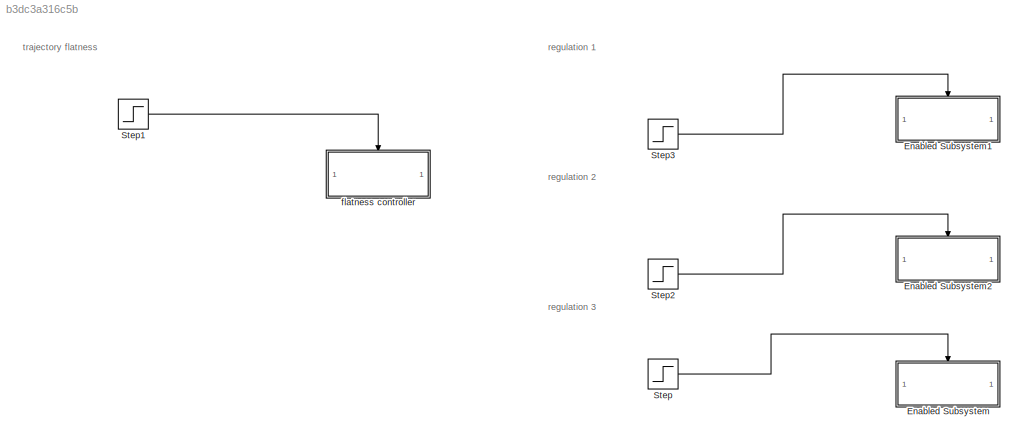
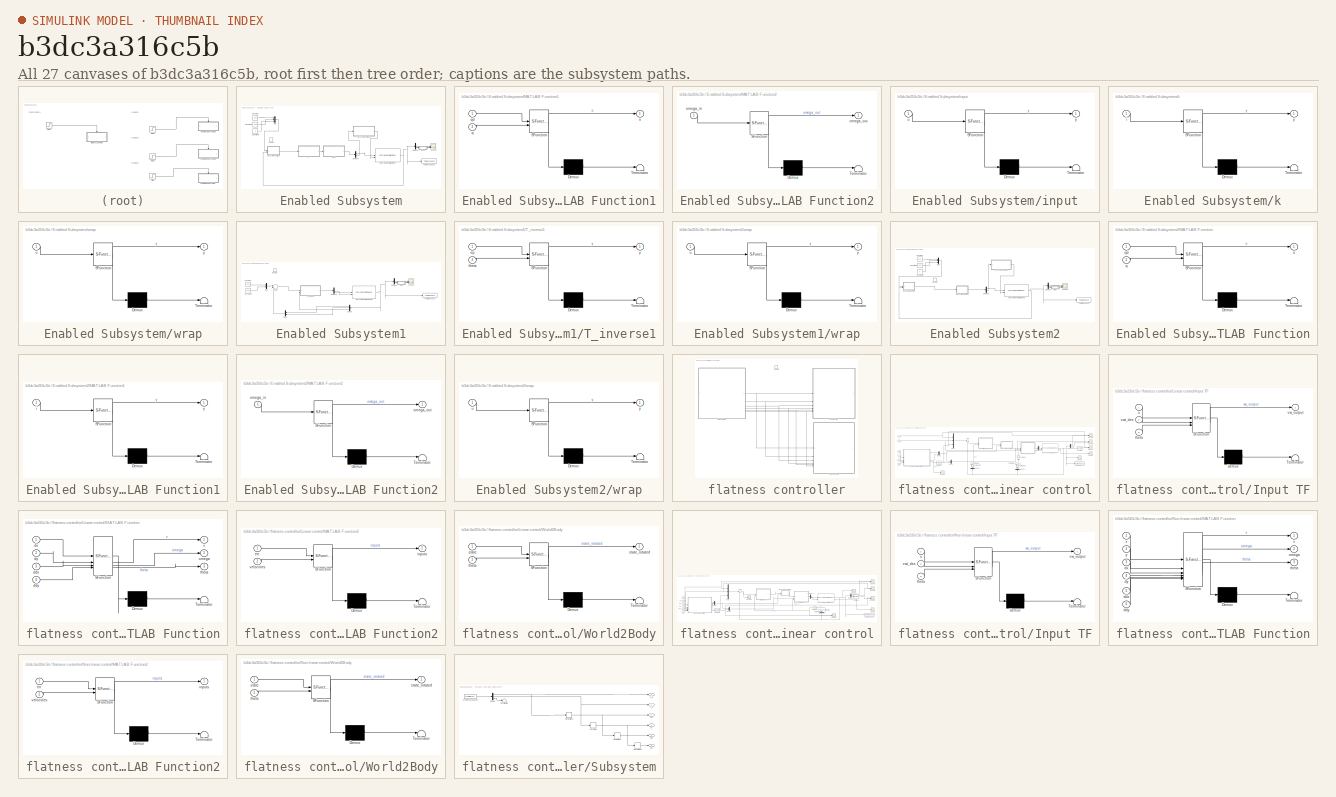
[diagram: thumbnail index - all 27 canvases of the model, root first then tree order]
MODEL slx_b3dc3a316c5b
KIND model
CONFIG AbsTol = auto
CONFIG EnableMultiTasking = off
CONFIG FixedStep = auto
CONFIG MaxStep = auto
CONFIG MinStep = auto
CONFIG RelTol = 1e-3
CONFIG SampleTimeConstraint = Unconstrained
CONFIG SolverName = FixedStepAuto
CONFIG StartTime = 0.0
CONFIG StopTime = 15
WORKSPACE source: mxarray member
WORKSPACE kp: Simulink.Parameter (value not decoded)
BLOCK [SubSystem] Enabled Subsystem
  Commented = on
  TreatAsAtomicUnit = on
BLOCK [Constant] Enabled Subsystem/Constant
  Value = 320
BLOCK [Constant] Enabled Subsystem/Constant1
  Value = 100
BLOCK [Constant] Enabled Subsystem/Constant2
  Value = 0
BLOCK [Demux] Enabled Subsystem/Demux1
  Outputs = 3
BLOCK [Demux] Enabled Subsystem/Demux4
  Outputs = 2
BLOCK [EnablePort] Enabled Subsystem/Enable
BLOCK [SubSystem] Enabled Subsystem/MATLAB Function1
  ErrorFcn = Stateflow.Translate.translate
  PermitHierarchicalResolution = ExplicitOnly
  SFBlockType = MATLAB Function
  TreatAsAtomicUnit = on
BLOCK [Demux] Enabled Subsystem/MATLAB Function1/ Demux 
  Outputs = 1
BLOCK [S-Function] Enabled Subsystem/MATLAB Function1/ SFunction 
  EnableBusSupport = off
  FunctionName = sf_sfun
  PortCounts = [2 2]
  SFcnIsStateOwnerBlock = off
  SFunctionDeploymentMode = off
  Tag = Stateflow S-Function 9
BLOCK [Terminator] Enabled Subsystem/MATLAB Function1/ Terminator 
BLOCK [Outport] Enabled Subsystem/MATLAB Function1/o
BLOCK [Inport] Enabled Subsystem/MATLAB Function1/q
  Port = 2
BLOCK [Inport] Enabled Subsystem/MATLAB Function1/qd
BLOCK [SubSystem] Enabled Subsystem/MATLAB Function2
  ErrorFcn = Stateflow.Translate.translate
  PermitHierarchicalResolution = ExplicitOnly
  SFBlockType = MATLAB Function
  TreatAsAtomicUnit = on
BLOCK [Demux] Enabled Subsystem/MATLAB Function2/ Demux 
  Outputs = 1
BLOCK [S-Function] Enabled Subsystem/MATLAB Function2/ SFunction 
  EnableBusSupport = off
  FunctionName = sf_sfun
  PortCounts = [1 2]
  SFcnIsStateOwnerBlock = off
  SFunctionDeploymentMode = off
  Tag = Stateflow S-Function 10
BLOCK [Terminator] Enabled Subsystem/MATLAB Function2/ Terminator 
BLOCK [Inport] Enabled Subsystem/MATLAB Function2/omega_in
BLOCK [Outport] Enabled Subsystem/MATLAB Function2/omega_out
BLOCK [Mux] Enabled Subsystem/Mux
  DisplayOption = bar
  Inputs = 3
BLOCK [Scope] Enabled Subsystem/Scope1
  Floating = off
  NumInputPorts = 3
  ScopeSpecificationString = Simulink.scopes.TimeScopeBlockCfg('CurrentConfiguration', extmgr.ConfigurationSet(extmgr.Configuration('Core','General UI',true),extmgr.Configuration('Core','Source UI',true),extmgr.Configuration('Sources','WiredSimulink',true,'DataLoggingVariableName','ScopeData2'),extmgr.Configuration('Visuals','Time Domain',true,'SerializedDisplays',{struct('MinYLimReal','-40.0973','MaxYLimReal','360.01081','YL...<+1469ch>
BLOCK [ToWorkspace] Enabled Subsystem/To Workspace1
  FixptAsFi = on
  MaxDataPoints = inf
  SampleTime = 0.001
  SaveFormat = Structure With Time
  VariableName = uni_state1
BLOCK [Reference] Enabled Subsystem/Unicycle Kinematic Model  REF=robotmobilelib/Unicycle Kinematic Model
  SourceBlock = robotmobilelib/Unicycle Kinematic Model
  SourceType = Unicycle Kinematic Model
BLOCK [SubSystem] Enabled Subsystem/input
  ErrorFcn = Stateflow.Translate.translate
  PermitHierarchicalResolution = ExplicitOnly
  SFBlockType = MATLAB Function
  TreatAsAtomicUnit = on
BLOCK [Demux] Enabled Subsystem/input/ Demux 
  Outputs = 1
BLOCK [S-Function] Enabled Subsystem/input/ SFunction 
  EnableBusSupport = off
  FunctionName = sf_sfun
  PortCounts = [1 2]
  SFcnIsStateOwnerBlock = off
  SFunctionDeploymentMode = off
  Tag = Stateflow S-Function 11
BLOCK [Terminator] Enabled Subsystem/input/ Terminator 
BLOCK [Inport] Enabled Subsystem/input/u
BLOCK [Outport] Enabled Subsystem/input/y
BLOCK [SubSystem] Enabled Subsystem/k
  ErrorFcn = Stateflow.Translate.translate
  PermitHierarchicalResolution = ExplicitOnly
  SFBlockType = MATLAB Function
  TreatAsAtomicUnit = on
BLOCK [Demux] Enabled Subsystem/k/ Demux 
  Outputs = 1
BLOCK [S-Function] Enabled Subsystem/k/ SFunction 
  EnableBusSupport = off
  FunctionName = sf_sfun
  PortCounts = [1 2]
  SFcnIsStateOwnerBlock = off
  SFunctionDeploymentMode = off
  Tag = Stateflow S-Function 12
BLOCK [Terminator] Enabled Subsystem/k/ Terminator 
BLOCK [Inport] Enabled Subsystem/k/i
BLOCK [Outport] Enabled Subsystem/k/y
BLOCK [SubSystem] Enabled Subsystem/wrap
  ErrorFcn = Stateflow.Translate.translate
  PermitHierarchicalResolution = ExplicitOnly
  SFBlockType = MATLAB Function
  TreatAsAtomicUnit = on
BLOCK [Demux] Enabled Subsystem/wrap/ Demux 
  Outputs = 1
BLOCK [S-Function] Enabled Subsystem/wrap/ SFunction 
  EnableBusSupport = off
  FunctionName = sf_sfun
  PortCounts = [1 2]
  SFcnIsStateOwnerBlock = off
  SFunctionDeploymentMode = off
  Tag = Stateflow S-Function 13
BLOCK [Terminator] Enabled Subsystem/wrap/ Terminator 
BLOCK [Inport] Enabled Subsystem/wrap/u
BLOCK [Outport] Enabled Subsystem/wrap/y
BLOCK [SubSystem] Enabled Subsystem1
  TreatAsAtomicUnit = on
BLOCK [Constant] Enabled Subsystem1/Constant
  Value = 320
BLOCK [Constant] Enabled Subsystem1/Constant1
  Value = 100
BLOCK [Demux] Enabled Subsystem1/Demux
  NameLocation = top
  Outputs = 3
BLOCK [Demux] Enabled Subsystem1/Demux2
  Outputs = 2
BLOCK [Demux] Enabled Subsystem1/Demux4
  Outputs = 3
BLOCK [EnablePort] Enabled Subsystem1/Enable
BLOCK [Mux] Enabled Subsystem1/Mux
  DisplayOption = bar
  Inputs = 2
BLOCK [Mux] Enabled Subsystem1/Mux1
  DisplayOption = bar
  Inputs = 2
  NameLocation = top
BLOCK [Scope] Enabled Subsystem1/Scope2
  Floating = off
  NumInputPorts = 3
  ScopeSpecificationString = Simulink.scopes.TimeScopeBlockCfg('CurrentConfiguration', extmgr.ConfigurationSet(extmgr.Configuration('Core','General UI',true),extmgr.Configuration('Core','Source UI',true),extmgr.Configuration('Sources','WiredSimulink',true,'DataLoggingVariableName','ScopeData1'),extmgr.Configuration('Visuals','Time Domain',true,'SerializedDisplays',{struct('MinYLimReal','-40.00000','MaxYLimReal','360.00000','Y...<+1475ch>
BLOCK [Sum] Enabled Subsystem1/Sum2
  Inputs = ||+-|
BLOCK [SubSystem] Enabled Subsystem1/T_inverse1
  ErrorFcn = Stateflow.Translate.translate
  PermitHierarchicalResolution = ExplicitOnly
  SFBlockType = MATLAB Function
  TreatAsAtomicUnit = on
BLOCK [Demux] Enabled Subsystem1/T_inverse1/ Demux 
  Outputs = 1
BLOCK [S-Function] Enabled Subsystem1/T_inverse1/ SFunction 
  EnableBusSupport = on
  FunctionName = sf_sfun
  PortCounts = [2 2]
  SFcnIsStateOwnerBlock = off
  SFunctionDeploymentMode = off
  Tag = Stateflow S-Function 17
BLOCK [Terminator] Enabled Subsystem1/T_inverse1/ Terminator 
BLOCK [Inport] Enabled Subsystem1/T_inverse1/ep
BLOCK [Inport] Enabled Subsystem1/T_inverse1/theta
  Port = 2
BLOCK [Outport] Enabled Subsystem1/T_inverse1/y
BLOCK [ToWorkspace] Enabled Subsystem1/To Workspace1
  FixptAsFi = on
  MaxDataPoints = inf
  SampleTime = 0.001
  SaveFormat = Structure With Time
  VariableName = uni_state1
BLOCK [Reference] Enabled Subsystem1/Unicycle Kinematic Model1  REF=robotmobilelib/Unicycle Kinematic Model
  SourceBlock = robotmobilelib/Unicycle Kinematic Model
  SourceType = Unicycle Kinematic Model
BLOCK [SubSystem] Enabled Subsystem1/wrap
  ErrorFcn = Stateflow.Translate.translate
  PermitHierarchicalResolution = ExplicitOnly
  SFBlockType = MATLAB Function
  TreatAsAtomicUnit = on
BLOCK [Demux] Enabled Subsystem1/wrap/ Demux 
  Outputs = 1
BLOCK [S-Function] Enabled Subsystem1/wrap/ SFunction 
  EnableBusSupport = on
  FunctionName = sf_sfun
  PortCounts = [1 2]
  SFcnIsStateOwnerBlock = off
  SFunctionDeploymentMode = off
  Tag = Stateflow S-Function 16
BLOCK [Terminator] Enabled Subsystem1/wrap/ Terminator 
BLOCK [Inport] Enabled Subsystem1/wrap/u
BLOCK [Outport] Enabled Subsystem1/wrap/y
BLOCK [SubSystem] Enabled Subsystem2
  Commented = on
  TreatAsAtomicUnit = on
BLOCK [Constant] Enabled Subsystem2/Constant
  Value = 320
BLOCK [Constant] Enabled Subsystem2/Constant1
  Value = 100
BLOCK [Constant] Enabled Subsystem2/Constant2
  Value = 0
BLOCK [Demux] Enabled Subsystem2/Demux4
  Outputs = 3
BLOCK [Demux] Enabled Subsystem2/Demux5
  Outputs = 2
BLOCK [EnablePort] Enabled Subsystem2/Enable
BLOCK [SubSystem] Enabled Subsystem2/MATLAB Function
  ErrorFcn = Stateflow.Translate.translate
  PermitHierarchicalResolution = ExplicitOnly
  SFBlockType = MATLAB Function
  TreatAsAtomicUnit = on
BLOCK [Demux] Enabled Subsystem2/MATLAB Function/ Demux 
  Outputs = 1
BLOCK [S-Function] Enabled Subsystem2/MATLAB Function/ SFunction 
  EnableBusSupport = off
  FunctionName = sf_sfun
  PortCounts = [2 2]
  SFcnIsStateOwnerBlock = off
  SFunctionDeploymentMode = off
  Tag = Stateflow S-Function 14
BLOCK [Terminator] Enabled Subsystem2/MATLAB Function/ Terminator 
BLOCK [Outport] Enabled Subsystem2/MATLAB Function/o
BLOCK [Inport] Enabled Subsystem2/MATLAB Function/q
  Port = 2
BLOCK [Inport] Enabled Subsystem2/MATLAB Function/qd
BLOCK [SubSystem] Enabled Subsystem2/MATLAB Function1
  ErrorFcn = Stateflow.Translate.translate
  PermitHierarchicalResolution = ExplicitOnly
  SFBlockType = MATLAB Function
  TreatAsAtomicUnit = on
BLOCK [Demux] Enabled Subsystem2/MATLAB Function1/ Demux 
  Outputs = 1
BLOCK [S-Function] Enabled Subsystem2/MATLAB Function1/ SFunction 
  EnableBusSupport = off
  FunctionName = sf_sfun
  PortCounts = [1 2]
  SFcnIsStateOwnerBlock = off
  SFunctionDeploymentMode = off
  Tag = Stateflow S-Function 15
BLOCK [Terminator] Enabled Subsystem2/MATLAB Function1/ Terminator 
BLOCK [Inport] Enabled Subsystem2/MATLAB Function1/i
BLOCK [Outport] Enabled Subsystem2/MATLAB Function1/y
BLOCK [SubSystem] Enabled Subsystem2/MATLAB Function2
  ErrorFcn = Stateflow.Translate.translate
  PermitHierarchicalResolution = ExplicitOnly
  SFBlockType = MATLAB Function
  TreatAsAtomicUnit = on
BLOCK [Demux] Enabled Subsystem2/MATLAB Function2/ Demux 
  Outputs = 1
BLOCK [S-Function] Enabled Subsystem2/MATLAB Function2/ SFunction 
  EnableBusSupport = off
  FunctionName = sf_sfun
  PortCounts = [1 2]
  SFcnIsStateOwnerBlock = off
  SFunctionDeploymentMode = off
  Tag = Stateflow S-Function 18
BLOCK [Terminator] Enabled Subsystem2/MATLAB Function2/ Terminator 
BLOCK [Inport] Enabled Subsystem2/MATLAB Function2/omega_in
BLOCK [Outport] Enabled Subsystem2/MATLAB Function2/omega_out
BLOCK [Mux] Enabled Subsystem2/Mux
  DisplayOption = bar
  Inputs = 3
BLOCK [Scope] Enabled Subsystem2/Scope2
  Floating = off
  NumInputPorts = 3
  ScopeSpecificationString = Simulink.scopes.TimeScopeBlockCfg('CurrentConfiguration', extmgr.ConfigurationSet(extmgr.Configuration('Core','General UI',true),extmgr.Configuration('Core','Source UI',true),extmgr.Configuration('Sources','WiredSimulink',true,'DataLoggingVariableName','ScopeData1'),extmgr.Configuration('Visuals','Time Domain',true,'SerializedDisplays',{struct('MinYLimReal','-40.26123','MaxYLimReal','360.02903','Y...<+1475ch>
BLOCK [ToWorkspace] Enabled Subsystem2/To Workspace1
  FixptAsFi = on
  MaxDataPoints = inf
  SampleTime = 0.001
  SaveFormat = Structure With Time
  VariableName = uni_state1
BLOCK [Reference] Enabled Subsystem2/Unicycle Kinematic Model1  REF=robotmobilelib/Unicycle Kinematic Model
  SourceBlock = robotmobilelib/Unicycle Kinematic Model
  SourceType = Unicycle Kinematic Model
BLOCK [SubSystem] Enabled Subsystem2/wrap
  ErrorFcn = Stateflow.Translate.translate
  PermitHierarchicalResolution = ExplicitOnly
  SFBlockType = MATLAB Function
  TreatAsAtomicUnit = on
BLOCK [Demux] Enabled Subsystem2/wrap/ Demux 
  Outputs = 1
BLOCK [S-Function] Enabled Subsystem2/wrap/ SFunction 
  EnableBusSupport = off
  FunctionName = sf_sfun
  PortCounts = [1 2]
  SFcnIsStateOwnerBlock = off
  SFunctionDeploymentMode = off
  Tag = Stateflow S-Function 19
BLOCK [Terminator] Enabled Subsystem2/wrap/ Terminator 
BLOCK [Inport] Enabled Subsystem2/wrap/u
BLOCK [Outport] Enabled Subsystem2/wrap/y
BLOCK [Step] Step
  Commented = on
  SampleTime = 0
  Time = 10
BLOCK [Step] Step1
  After = 0
  Before = 1
  SampleTime = 0
  Time = 10
BLOCK [Step] Step2
  Commented = on
  SampleTime = 0
  Time = 10
BLOCK [Step] Step3
  SampleTime = 0
  Time = 10
BLOCK [SubSystem] flatness controller
  TreatAsAtomicUnit = on
BLOCK [EnablePort] flatness controller/Enable
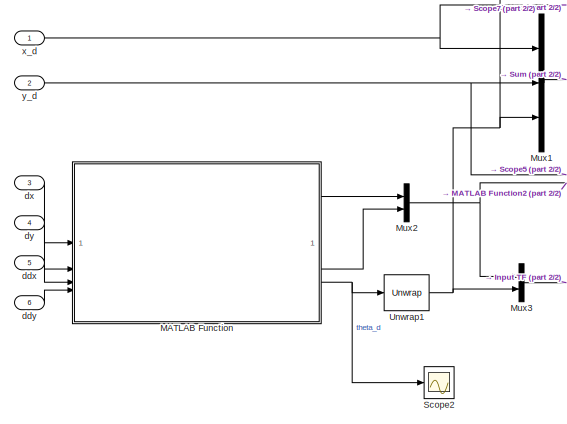
[diagram: flatness controller/Linear control - part 1/2, left side, full height]
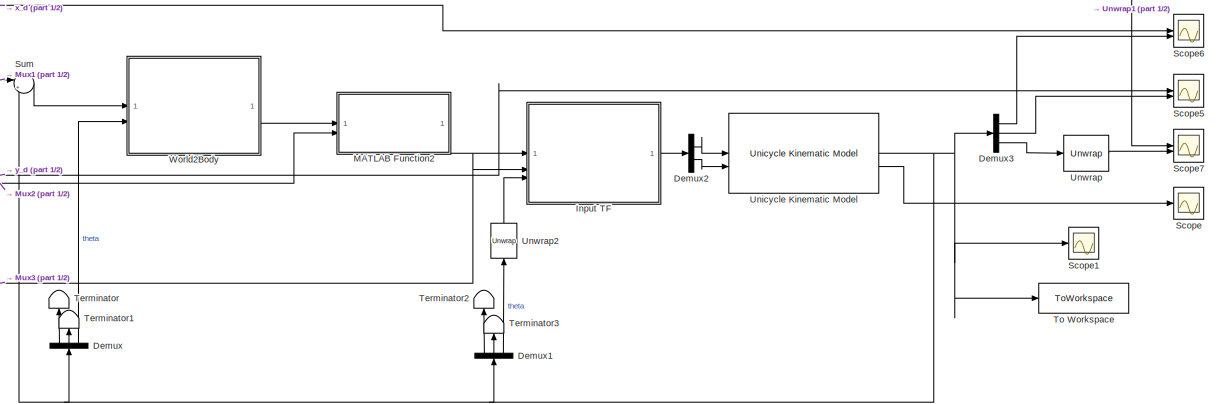
[diagram: flatness controller/Linear control - part 2/2, right side, full height]
BLOCK [SubSystem] flatness controller/Linear control
  Commented = on
BLOCK [Demux] flatness controller/Linear control/Demux
  NameLocation = right
  Outputs = 3
BLOCK [Demux] flatness controller/Linear control/Demux1
  NameLocation = right
  Outputs = 3
BLOCK [Demux] flatness controller/Linear control/Demux2
  Outputs = 2
BLOCK [Demux] flatness controller/Linear control/Demux3
  Outputs = 3
BLOCK [SubSystem] flatness controller/Linear control/Input TF
  ErrorFcn = Stateflow.Translate.translate
  PermitHierarchicalResolution = ExplicitOnly
  SFBlockType = MATLAB Function
  TreatAsAtomicUnit = on
BLOCK [Demux] flatness controller/Linear control/Input TF/ Demux 
  Outputs = 1
BLOCK [S-Function] flatness controller/Linear control/Input TF/ SFunction 
  EnableBusSupport = on
  FunctionName = sf_sfun
  PortCounts = [3 2]
  SFcnIsStateOwnerBlock = off
  SFunctionDeploymentMode = off
  Tag = Stateflow S-Function 3
BLOCK [Terminator] flatness controller/Linear control/Input TF/ Terminator 
BLOCK [Inport] flatness controller/Linear control/Input TF/theta
  Port = 3
BLOCK [Inport] flatness controller/Linear control/Input TF/u
BLOCK [Outport] flatness controller/Linear control/Input TF/vw_output
BLOCK [Inport] flatness controller/Linear control/Input TF/vwt_des
  Port = 2
BLOCK [SubSystem] flatness controller/Linear control/MATLAB Function
  ErrorFcn = Stateflow.Translate.translate
  PermitHierarchicalResolution = ExplicitOnly
  SFBlockType = MATLAB Function
  TreatAsAtomicUnit = on
BLOCK [Demux] flatness controller/Linear control/MATLAB Function/ Demux 
  Outputs = 1
BLOCK [S-Function] flatness controller/Linear control/MATLAB Function/ SFunction 
  EnableBusSupport = on
  FunctionName = sf_sfun
  PortCounts = [4 4]
  SFcnIsStateOwnerBlock = off
  SFunctionDeploymentMode = off
  Tag = Stateflow S-Function 2
BLOCK [Terminator] flatness controller/Linear control/MATLAB Function/ Terminator 
BLOCK [Inport] flatness controller/Linear control/MATLAB Function/ddx
  Port = 3
BLOCK [Inport] flatness controller/Linear control/MATLAB Function/ddy
  Port = 4
BLOCK [Inport] flatness controller/Linear control/MATLAB Function/dx
BLOCK [Inport] flatness controller/Linear control/MATLAB Function/dy
  Port = 2
BLOCK [Outport] flatness controller/Linear control/MATLAB Function/omega
  Port = 2
BLOCK [Outport] flatness controller/Linear control/MATLAB Function/theta
  Port = 3
BLOCK [Outport] flatness controller/Linear control/MATLAB Function/v
BLOCK [SubSystem] flatness controller/Linear control/MATLAB Function2
  ErrorFcn = Stateflow.Translate.translate
  PermitHierarchicalResolution = ExplicitOnly
  SFBlockType = MATLAB Function
  TreatAsAtomicUnit = on
BLOCK [Demux] flatness controller/Linear control/MATLAB Function2/ Demux 
  Outputs = 1
BLOCK [S-Function] flatness controller/Linear control/MATLAB Function2/ SFunction 
  EnableBusSupport = on
  FunctionName = sf_sfun
  PortCounts = [2 2]
  SFcnIsStateOwnerBlock = off
  SFunctionDeploymentMode = off
  Tag = Stateflow S-Function 4
BLOCK [Terminator] flatness controller/Linear control/MATLAB Function2/ Terminator 
BLOCK [Inport] flatness controller/Linear control/MATLAB Function2/err
BLOCK [Outport] flatness controller/Linear control/MATLAB Function2/inputs
BLOCK [Inport] flatness controller/Linear control/MATLAB Function2/velocities
  Port = 2
BLOCK [Mux] flatness controller/Linear control/Mux1
  DisplayOption = bar
  Inputs = 3
BLOCK [Mux] flatness controller/Linear control/Mux2
  DisplayOption = bar
  Inputs = 2
BLOCK [Mux] flatness controller/Linear control/Mux3
  DisplayOption = bar
  Inputs = 2
BLOCK [Scope] flatness controller/Linear control/Scope
  Floating = off
  NumInputPorts = 1
  ScopeSpecificationString = Simulink.scopes.TimeScopeBlockCfg('CurrentConfiguration', extmgr.ConfigurationSet(extmgr.Configuration('Core','General UI',true),extmgr.Configuration('Core','Source UI',true),extmgr.Configuration('Sources','WiredSimulink',true),extmgr.Configuration('Visuals','Time Domain',true,'SerializedDisplays',{struct('MinYLimReal','-1.76752','MaxYLimReal','11.3075','YLabelReal','','MinYLimMag','0.00000','MaxY...<+1437ch>
BLOCK [Scope] flatness controller/Linear control/Scope1
  Floating = off
  NumInputPorts = 1
  ScopeSpecificationString = Simulink.scopes.TimeScopeBlockCfg('CurrentConfiguration', extmgr.ConfigurationSet(extmgr.Configuration('Core','General UI',true),extmgr.Configuration('Core','Source UI',true),extmgr.Configuration('Sources','WiredSimulink',true,'DataLoggingVariableName','ScopeData1'),extmgr.Configuration('Visuals','Time Domain',true,'SerializedDisplays',{struct('MinYLimReal','-70.52042','MaxYLimReal','624.34393','Y...<+1555ch>
BLOCK [Scope] flatness controller/Linear control/Scope2
  Floating = off
  NumInputPorts = 1
  ScopeSpecificationString = Simulink.scopes.TimeScopeBlockCfg('CurrentConfiguration', extmgr.ConfigurationSet(extmgr.Configuration('Core','General UI',true),extmgr.Configuration('Core','Source UI',true),extmgr.Configuration('Sources','WiredSimulink',true,'DataLoggingVariableName','ScopeData1'),extmgr.Configuration('Visuals','Time Domain',true),extmgr.Configuration('Tools','Plot Navigation',true),extmgr.Configuration('Tools',...<+40ch>
BLOCK [Scope] flatness controller/Linear control/Scope5
  Floating = off
  NumInputPorts = 2
  ScopeSpecificationString = Simulink.scopes.TimeScopeBlockCfg('CurrentConfiguration', extmgr.ConfigurationSet(extmgr.Configuration('Core','General UI',true),extmgr.Configuration('Core','Source UI',true),extmgr.Configuration('Sources','WiredSimulink',true,'DataLoggingVariableName','ScopeData5'),extmgr.Configuration('Visuals','Time Domain',true,'SerializedDisplays',{struct('MinYLimReal','31.94121','MaxYLimReal','218.63298','YL...<+1465ch>
BLOCK [Scope] flatness controller/Linear control/Scope6
  Floating = off
  NumInputPorts = 2
  ScopeSpecificationString = Simulink.scopes.TimeScopeBlockCfg('CurrentConfiguration', extmgr.ConfigurationSet(extmgr.Configuration('Core','General UI',true),extmgr.Configuration('Core','Source UI',true),extmgr.Configuration('Sources','WiredSimulink',true,'DataLoggingVariableName','ScopeData6'),extmgr.Configuration('Visuals','Time Domain',true,'SerializedDisplays',{struct('MinYLimReal','-2.98578','MaxYLimReal','626.95417','YL...<+1465ch>
BLOCK [Scope] flatness controller/Linear control/Scope7
  Floating = off
  NumInputPorts = 2
  ScopeSpecificationString = Simulink.scopes.TimeScopeBlockCfg('CurrentConfiguration', extmgr.ConfigurationSet(extmgr.Configuration('Core','General UI',true),extmgr.Configuration('Core','Source UI',true),extmgr.Configuration('Sources','WiredSimulink',true,'DataLoggingVariableName','ScopeData7'),extmgr.Configuration('Visuals','Time Domain',true,'SerializedDisplays',{struct('MinYLimReal','-1.02184','MaxYLimReal','0.28724','YLab...<+1444ch>
BLOCK [Sum] flatness controller/Linear control/Sum
  Inputs = |+-
BLOCK [Terminator] flatness controller/Linear control/Terminator
  NameLocation = right
BLOCK [Terminator] flatness controller/Linear control/Terminator1
  NameLocation = right
BLOCK [Terminator] flatness controller/Linear control/Terminator2
  NameLocation = right
BLOCK [Terminator] flatness controller/Linear control/Terminator3
  NameLocation = right
BLOCK [ToWorkspace] flatness controller/Linear control/To Workspace
  FixptAsFi = on
  MaxDataPoints = inf
  SampleTime = 0.01
  SaveFormat = Structure With Time
  VariableName = uni_state
BLOCK [Reference] flatness controller/Linear control/Unicycle Kinematic Model  REF=robotmobilelib/Unicycle Kinematic Model
  SourceBlock = robotmobilelib/Unicycle Kinematic Model
  SourceType = Unicycle Kinematic Model
BLOCK [Reference] flatness controller/Linear control/Unwrap  REF=dspsigops/Unwrap
  SourceBlock = dspsigops/Unwrap
  SourceType = Unwrap
  UserDataPersistent = on
BLOCK [Reference] flatness controller/Linear control/Unwrap1  REF=dspsigops/Unwrap
  SourceBlock = dspsigops/Unwrap
  SourceType = Unwrap
  UserDataPersistent = on
BLOCK [Reference] flatness controller/Linear control/Unwrap2  REF=dspsigops/Unwrap
  NameLocation = right
  SourceBlock = dspsigops/Unwrap
  SourceType = Unwrap
  UserDataPersistent = on
BLOCK [SubSystem] flatness controller/Linear control/World2Body
  ErrorFcn = Stateflow.Translate.translate
  PermitHierarchicalResolution = ExplicitOnly
  SFBlockType = MATLAB Function
  TreatAsAtomicUnit = on
BLOCK [Demux] flatness controller/Linear control/World2Body/ Demux 
  Outputs = 1
BLOCK [S-Function] flatness controller/Linear control/World2Body/ SFunction 
  EnableBusSupport = on
  FunctionName = sf_sfun
  PortCounts = [2 2]
  SFcnIsStateOwnerBlock = off
  SFunctionDeploymentMode = off
  Tag = Stateflow S-Function 1
BLOCK [Terminator] flatness controller/Linear control/World2Body/ Terminator 
BLOCK [Inport] flatness controller/Linear control/World2Body/state
BLOCK [Outport] flatness controller/Linear control/World2Body/state_rotated
BLOCK [Inport] flatness controller/Linear control/World2Body/theta
  Port = 2
BLOCK [Inport] flatness controller/Linear control/ddx
  NameLocation = left
  Port = 5
BLOCK [Inport] flatness controller/Linear control/ddy
  NameLocation = left
  Port = 6
BLOCK [Inport] flatness controller/Linear control/dx
  NameLocation = left
  Port = 3
BLOCK [Inport] flatness controller/Linear control/dy
  NameLocation = left
  Port = 4
BLOCK [Inport] flatness controller/Linear control/x_d
  NameLocation = left
BLOCK [Inport] flatness controller/Linear control/y_d
  NameLocation = left
  Port = 2
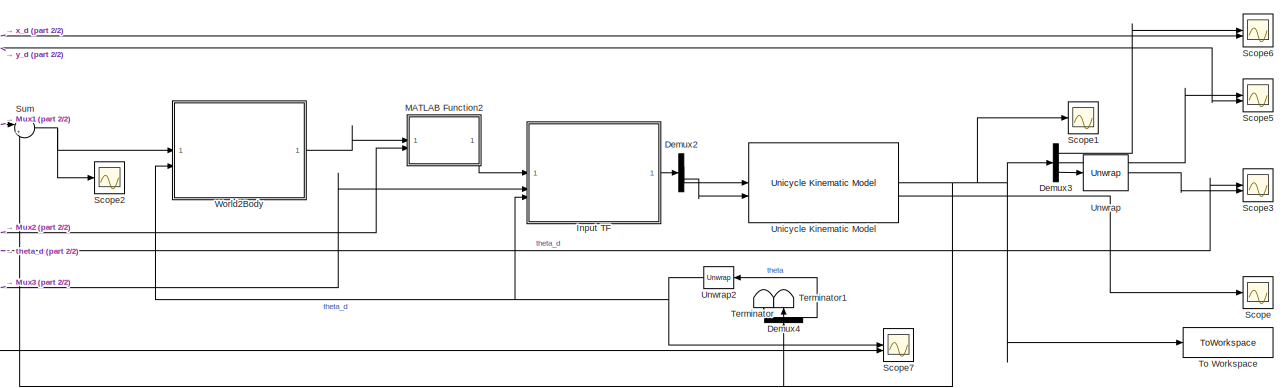
[diagram: flatness controller/Non linear control - part 1/2, center side, full height]
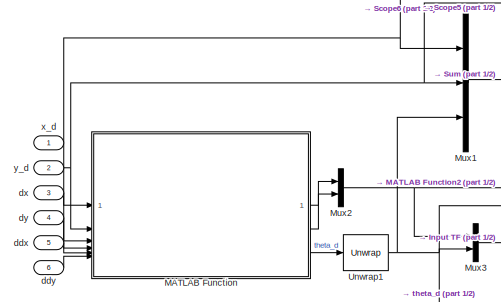
[diagram: flatness controller/Non linear control - part 2/2, middle left region]
BLOCK [SubSystem] flatness controller/Non linear control
BLOCK [Demux] flatness controller/Non linear control/Demux2
  Outputs = 2
BLOCK [Demux] flatness controller/Non linear control/Demux3
  Outputs = 3
BLOCK [Demux] flatness controller/Non linear control/Demux4
  NameLocation = right
  Outputs = 3
BLOCK [SubSystem] flatness controller/Non linear control/Input TF
  ErrorFcn = Stateflow.Translate.translate
  PermitHierarchicalResolution = ExplicitOnly
  SFBlockType = MATLAB Function
  TreatAsAtomicUnit = on
BLOCK [Demux] flatness controller/Non linear control/Input TF/ Demux 
  Outputs = 1
BLOCK [S-Function] flatness controller/Non linear control/Input TF/ SFunction 
  EnableBusSupport = on
  FunctionName = sf_sfun
  PortCounts = [3 2]
  SFcnIsStateOwnerBlock = off
  SFunctionDeploymentMode = off
  Tag = Stateflow S-Function 5
BLOCK [Terminator] flatness controller/Non linear control/Input TF/ Terminator 
BLOCK [Inport] flatness controller/Non linear control/Input TF/theta
  Port = 3
BLOCK [Inport] flatness controller/Non linear control/Input TF/u
BLOCK [Outport] flatness controller/Non linear control/Input TF/vw_output
BLOCK [Inport] flatness controller/Non linear control/Input TF/vwt_des
  Port = 2
BLOCK [SubSystem] flatness controller/Non linear control/MATLAB Function
  ErrorFcn = Stateflow.Translate.translate
  PermitHierarchicalResolution = ExplicitOnly
  SFBlockType = MATLAB Function
  TreatAsAtomicUnit = on
BLOCK [Demux] flatness controller/Non linear control/MATLAB Function/ Demux 
  Outputs = 1
BLOCK [S-Function] flatness controller/Non linear control/MATLAB Function/ SFunction 
  EnableBusSupport = on
  FunctionName = sf_sfun
  PortCounts = [6 4]
  SFcnIsStateOwnerBlock = off
  SFunctionDeploymentMode = off
  Tag = Stateflow S-Function 6
BLOCK [Terminator] flatness controller/Non linear control/MATLAB Function/ Terminator 
BLOCK [Inport] flatness controller/Non linear control/MATLAB Function/ddx
  Port = 5
BLOCK [Inport] flatness controller/Non linear control/MATLAB Function/ddy
  Port = 6
BLOCK [Inport] flatness controller/Non linear control/MATLAB Function/dx
  Port = 3
BLOCK [Inport] flatness controller/Non linear control/MATLAB Function/dy
  Port = 4
BLOCK [Outport] flatness controller/Non linear control/MATLAB Function/omega
  Port = 2
BLOCK [Outport] flatness controller/Non linear control/MATLAB Function/theta
  Port = 3
BLOCK [Outport] flatness controller/Non linear control/MATLAB Function/v
BLOCK [Inport] flatness controller/Non linear control/MATLAB Function/x
BLOCK [Inport] flatness controller/Non linear control/MATLAB Function/y
  Port = 2
BLOCK [SubSystem] flatness controller/Non linear control/MATLAB Function2
  ErrorFcn = Stateflow.Translate.translate
  PermitHierarchicalResolution = ExplicitOnly
  SFBlockType = MATLAB Function
  TreatAsAtomicUnit = on
BLOCK [Demux] flatness controller/Non linear control/MATLAB Function2/ Demux 
  Outputs = 1
BLOCK [S-Function] flatness controller/Non linear control/MATLAB Function2/ SFunction 
  EnableBusSupport = on
  FunctionName = sf_sfun
  PortCounts = [2 2]
  SFcnIsStateOwnerBlock = off
  SFunctionDeploymentMode = off
  Tag = Stateflow S-Function 7
BLOCK [Terminator] flatness controller/Non linear control/MATLAB Function2/ Terminator 
BLOCK [Inport] flatness controller/Non linear control/MATLAB Function2/err
BLOCK [Outport] flatness controller/Non linear control/MATLAB Function2/inputs
BLOCK [Inport] flatness controller/Non linear control/MATLAB Function2/velocities
  Port = 2
BLOCK [Mux] flatness controller/Non linear control/Mux1
  DisplayOption = bar
  Inputs = 3
BLOCK [Mux] flatness controller/Non linear control/Mux2
  DisplayOption = bar
  Inputs = 2
BLOCK [Mux] flatness controller/Non linear control/Mux3
  DisplayOption = bar
  Inputs = 2
BLOCK [Scope] flatness controller/Non linear control/Scope
  Floating = off
  NumInputPorts = 1
  ScopeSpecificationString = Simulink.scopes.TimeScopeBlockCfg('CurrentConfiguration', extmgr.ConfigurationSet(extmgr.Configuration('Core','General UI',true),extmgr.Configuration('Core','Source UI',true),extmgr.Configuration('Sources','WiredSimulink',true),extmgr.Configuration('Visuals','Time Domain',true,'SerializedDisplays',{struct('MinYLimReal','-1.76752','MaxYLimReal','11.3075','YLabelReal','','MinYLimMag','0.00000','MaxY...<+1437ch>
BLOCK [Scope] flatness controller/Non linear control/Scope1
  Floating = off
  NumInputPorts = 1
  ScopeSpecificationString = Simulink.scopes.TimeScopeBlockCfg('CurrentConfiguration', extmgr.ConfigurationSet(extmgr.Configuration('Core','General UI',true),extmgr.Configuration('Core','Source UI',true),extmgr.Configuration('Sources','WiredSimulink',true,'DataLoggingVariableName','ScopeData1'),extmgr.Configuration('Visuals','Time Domain',true,'SerializedDisplays',{struct('MinYLimReal','-70.54701','MaxYLimReal','624.49839','Y...<+1555ch>
BLOCK [Scope] flatness controller/Non linear control/Scope2
  Floating = off
  NumInputPorts = 1
  ScopeSpecificationString = Simulink.scopes.TimeScopeBlockCfg('CurrentConfiguration', extmgr.ConfigurationSet(extmgr.Configuration('Core','General UI',true),extmgr.Configuration('Core','Source UI',true),extmgr.Configuration('Sources','WiredSimulink',true,'DataLoggingVariableName','ScopeData1'),extmgr.Configuration('Visuals','Time Domain',true,'SerializedDisplays',{struct('MinYLimReal','-39.34211','MaxYLimReal','52.79803','YL...<+1422ch>
BLOCK [Scope] flatness controller/Non linear control/Scope3
  Floating = off
  NumInputPorts = 2
  ScopeSpecificationString = Simulink.scopes.TimeScopeBlockCfg('CurrentConfiguration', extmgr.ConfigurationSet(extmgr.Configuration('Core','General UI',true),extmgr.Configuration('Core','Source UI',true),extmgr.Configuration('Sources','WiredSimulink',true,'DataLoggingVariableName','ScopeData1'),extmgr.Configuration('Visuals','Time Domain',true,'SerializedDisplays',{struct('MinYLimReal','-1.9485','MaxYLimReal','7.19605','YLabe...<+1444ch>
BLOCK [Scope] flatness controller/Non linear control/Scope5
  Floating = off
  NumInputPorts = 2
  ScopeSpecificationString = Simulink.scopes.TimeScopeBlockCfg('CurrentConfiguration', extmgr.ConfigurationSet(extmgr.Configuration('Core','General UI',true),extmgr.Configuration('Core','Source UI',true),extmgr.Configuration('Sources','WiredSimulink',true,'DataLoggingVariableName','ScopeData5'),extmgr.Configuration('Visuals','Time Domain',true,'SerializedDisplays',{struct('MinYLimReal','31.74881','MaxYLimReal','229.8937','YLa...<+1461ch>
BLOCK [Scope] flatness controller/Non linear control/Scope6
  Floating = off
  NumInputPorts = 2
  ScopeSpecificationString = Simulink.scopes.TimeScopeBlockCfg('CurrentConfiguration', extmgr.ConfigurationSet(extmgr.Configuration('Core','General UI',true),extmgr.Configuration('Core','Source UI',true),extmgr.Configuration('Sources','WiredSimulink',true,'DataLoggingVariableName','ScopeData6'),extmgr.Configuration('Visuals','Time Domain',true,'SerializedDisplays',{struct('MinYLimReal','-1.86473','MaxYLimReal','616.86468','YL...<+1463ch>
BLOCK [Scope] flatness controller/Non linear control/Scope7
  Floating = off
  NumInputPorts = 2
  ScopeSpecificationString = Simulink.scopes.TimeScopeBlockCfg('CurrentConfiguration', extmgr.ConfigurationSet(extmgr.Configuration('Core','General UI',true),extmgr.Configuration('Core','Source UI',true),extmgr.Configuration('Sources','WiredSimulink',true,'DataLoggingVariableName','ScopeData7'),extmgr.Configuration('Visuals','Time Domain',true,'SerializedDisplays',{struct('MinYLimReal','-1.33758','MaxYLimReal','7.0598','YLabe...<+1437ch>
BLOCK [Sum] flatness controller/Non linear control/Sum
  Inputs = |+-
BLOCK [Terminator] flatness controller/Non linear control/Terminator
  NameLocation = right
BLOCK [Terminator] flatness controller/Non linear control/Terminator1
  NameLocation = right
BLOCK [ToWorkspace] flatness controller/Non linear control/To Workspace
  FixptAsFi = on
  MaxDataPoints = inf
  SampleTime = 0.01
  SaveFormat = Structure With Time
  VariableName = uni_state
BLOCK [Reference] flatness controller/Non linear control/Unicycle Kinematic Model  REF=robotmobilelib/Unicycle Kinematic Model
  SourceBlock = robotmobilelib/Unicycle Kinematic Model
  SourceType = Unicycle Kinematic Model
BLOCK [Reference] flatness controller/Non linear control/Unwrap  REF=dspsigops/Unwrap
  SourceBlock = dspsigops/Unwrap
  SourceType = Unwrap
  UserDataPersistent = on
BLOCK [Reference] flatness controller/Non linear control/Unwrap1  REF=dspsigops/Unwrap
  SourceBlock = dspsigops/Unwrap
  SourceType = Unwrap
  UserDataPersistent = on
BLOCK [Reference] flatness controller/Non linear control/Unwrap2  REF=dspsigops/Unwrap
  NameLocation = top
  SourceBlock = dspsigops/Unwrap
  SourceType = Unwrap
  UserDataPersistent = on
BLOCK [SubSystem] flatness controller/Non linear control/World2Body
  ErrorFcn = Stateflow.Translate.translate
  PermitHierarchicalResolution = ExplicitOnly
  SFBlockType = MATLAB Function
  TreatAsAtomicUnit = on
BLOCK [Demux] flatness controller/Non linear control/World2Body/ Demux 
  Outputs = 1
BLOCK [S-Function] flatness controller/Non linear control/World2Body/ SFunction 
  EnableBusSupport = on
  FunctionName = sf_sfun
  PortCounts = [2 2]
  SFcnIsStateOwnerBlock = off
  SFunctionDeploymentMode = off
  Tag = Stateflow S-Function 8
BLOCK [Terminator] flatness controller/Non linear control/World2Body/ Terminator 
BLOCK [Inport] flatness controller/Non linear control/World2Body/state
BLOCK [Outport] flatness controller/Non linear control/World2Body/state_rotated
BLOCK [Inport] flatness controller/Non linear control/World2Body/theta
  Port = 2
BLOCK [Inport] flatness controller/Non linear control/ddx
  NameLocation = left
  Port = 5
BLOCK [Inport] flatness controller/Non linear control/ddy
  NameLocation = left
  Port = 6
BLOCK [Inport] flatness controller/Non linear control/dx
  NameLocation = left
  Port = 3
BLOCK [Inport] flatness controller/Non linear control/dy
  NameLocation = left
  Port = 4
BLOCK [Inport] flatness controller/Non linear control/x_d
  NameLocation = left
BLOCK [Inport] flatness controller/Non linear control/y_d
  NameLocation = left
  Port = 2
BLOCK [SubSystem] flatness controller/Subsystem
BLOCK [Demux] flatness controller/Subsystem/Demux
  Outputs = 3
BLOCK [Derivative] flatness controller/Subsystem/Derivative
BLOCK [Derivative] flatness controller/Subsystem/Derivative1
BLOCK [Derivative] flatness controller/Subsystem/Derivative2
BLOCK [Derivative] flatness controller/Subsystem/Derivative3
BLOCK [FromWorkspace] flatness controller/Subsystem/From Workspace1
  NameLocation = right
  VariableName = ref_data
BLOCK [Terminator] flatness controller/Subsystem/Terminator
BLOCK [Outport] flatness controller/Subsystem/ddx
  Port = 5
BLOCK [Outport] flatness controller/Subsystem/ddy
  Port = 6
BLOCK [Outport] flatness controller/Subsystem/dx
  Port = 3
BLOCK [Outport] flatness controller/Subsystem/dy
  Port = 4
BLOCK [Outport] flatness controller/Subsystem/x_d
BLOCK [Outport] flatness controller/Subsystem/y_d
  Port = 2
ANNOTATION (root): regulation 1
ANNOTATION (root): regulation 2
ANNOTATION (root): regulation 3
ANNOTATION (root): trajectory flatness
LINE Enabled Subsystem/Constant1:1 -> Enabled Subsystem/Mux:2
LINE Enabled Subsystem/Constant2:1 -> Enabled Subsystem/Mux:3
LINE Enabled Subsystem/Constant:1 -> Enabled Subsystem/Mux:1
LINE Enabled Subsystem/Demux1:1 -> Enabled Subsystem/Scope1:1
LINE Enabled Subsystem/Demux1:2 -> Enabled Subsystem/Scope1:2
LINE Enabled Subsystem/Demux1:3 -> Enabled Subsystem/wrap:1
LINE Enabled Subsystem/Demux4:1 -> Enabled Subsystem/Unicycle Kinematic Model:1
LINE Enabled Subsystem/Demux4:2 -> Enabled Subsystem/MATLAB Function2:1
LINE Enabled Subsystem/MATLAB Function1:1 -> Enabled Subsystem/k:1
LINE Enabled Subsystem/MATLAB Function2:1 -> Enabled Subsystem/Unicycle Kinematic Model:2
LINE Enabled Subsystem/Mux:1 -> Enabled Subsystem/MATLAB Function1:1
NET Enabled Subsystem/Unicycle Kinematic Model:1 -> Enabled Subsystem/Demux1:1, Enabled Subsystem/MATLAB Function1:2, Enabled Subsystem/To Workspace1:1
LINE Enabled Subsystem/input:1 -> Enabled Subsystem/Demux4:1
LINE Enabled Subsystem/k:1 -> Enabled Subsystem/input:1
LINE Enabled Subsystem/wrap:1 -> Enabled Subsystem/Scope1:3
LINE Enabled Subsystem1/Constant1:1 -> Enabled Subsystem1/Mux:2
LINE Enabled Subsystem1/Constant:1 -> Enabled Subsystem1/Mux:1
LINE Enabled Subsystem1/Demux2:1 -> Enabled Subsystem1/Unicycle Kinematic Model1:1
LINE Enabled Subsystem1/Demux2:2 -> Enabled Subsystem1/Unicycle Kinematic Model1:2
LINE Enabled Subsystem1/Demux4:1 -> Enabled Subsystem1/Scope2:1
LINE Enabled Subsystem1/Demux4:2 -> Enabled Subsystem1/Scope2:2
LINE Enabled Subsystem1/Demux4:3 -> Enabled Subsystem1/wrap:1
LINE Enabled Subsystem1/Demux:1 -> Enabled Subsystem1/Mux1:1
LINE Enabled Subsystem1/Demux:2 -> Enabled Subsystem1/Mux1:2
LINE Enabled Subsystem1/Demux:3 -> Enabled Subsystem1/T_inverse1:2
LINE Enabled Subsystem1/Mux1:1 -> Enabled Subsystem1/Sum2:2
LINE Enabled Subsystem1/Mux:1 -> Enabled Subsystem1/Sum2:1
LINE Enabled Subsystem1/Sum2:1 -> Enabled Subsystem1/T_inverse1:1
LINE Enabled Subsystem1/T_inverse1:1 -> Enabled Subsystem1/Demux2:1
NET Enabled Subsystem1/Unicycle Kinematic Model1:1 -> Enabled Subsystem1/Demux4:1, Enabled Subsystem1/Demux:1, Enabled Subsystem1/To Workspace1:1
LINE Enabled Subsystem1/wrap:1 -> Enabled Subsystem1/Scope2:3
LINE Enabled Subsystem2/Constant1:1 -> Enabled Subsystem2/Mux:2
LINE Enabled Subsystem2/Constant2:1 -> Enabled Subsystem2/Mux:3
LINE Enabled Subsystem2/Constant:1 -> Enabled Subsystem2/Mux:1
LINE Enabled Subsystem2/Demux4:1 -> Enabled Subsystem2/Scope2:1
LINE Enabled Subsystem2/Demux4:2 -> Enabled Subsystem2/Scope2:2
LINE Enabled Subsystem2/Demux4:3 -> Enabled Subsystem2/wrap:1
LINE Enabled Subsystem2/Demux5:1 -> Enabled Subsystem2/Unicycle Kinematic Model1:1
LINE Enabled Subsystem2/Demux5:2 -> Enabled Subsystem2/MATLAB Function2:1
LINE Enabled Subsystem2/MATLAB Function1:1 -> Enabled Subsystem2/Demux5:1
LINE Enabled Subsystem2/MATLAB Function2:1 -> Enabled Subsystem2/Unicycle Kinematic Model1:2
LINE Enabled Subsystem2/MATLAB Function:1 -> Enabled Subsystem2/MATLAB Function1:1
LINE Enabled Subsystem2/Mux:1 -> Enabled Subsystem2/MATLAB Function:1
NET Enabled Subsystem2/Unicycle Kinematic Model1:1 -> Enabled Subsystem2/Demux4:1, Enabled Subsystem2/MATLAB Function:2, Enabled Subsystem2/To Workspace1:1
LINE Enabled Subsystem2/wrap:1 -> Enabled Subsystem2/Scope2:3
LINE Step1:1 -> flatness controller:enable
LINE Step2:1 -> Enabled Subsystem2:enable
LINE Step3:1 -> Enabled Subsystem1:enable
LINE Step:1 -> Enabled Subsystem:enable
LINE flatness controller/Linear control/Demux1:1 -> flatness controller/Linear control/Terminator2:1
LINE flatness controller/Linear control/Demux1:2 -> flatness controller/Linear control/Terminator3:1
LINE flatness controller/Linear control/Demux1:3 -> flatness controller/Linear control/Unwrap2:1
LINE flatness controller/Linear control/Demux2:1 -> flatness controller/Linear control/Unicycle Kinematic Model:1
LINE flatness controller/Linear control/Demux2:2 -> flatness controller/Linear control/Unicycle Kinematic Model:2
LINE flatness controller/Linear control/Demux3:1 -> flatness controller/Linear control/Scope6:2
LINE flatness controller/Linear control/Demux3:2 -> flatness controller/Linear control/Scope5:2
LINE flatness controller/Linear control/Demux3:3 -> flatness controller/Linear control/Unwrap:1
LINE flatness controller/Linear control/Demux:1 -> flatness controller/Linear control/Terminator:1
LINE flatness controller/Linear control/Demux:2 -> flatness controller/Linear control/Terminator1:1
LINE flatness controller/Linear control/Demux:3 -> flatness controller/Linear control/World2Body:2
LINE flatness controller/Linear control/Input TF:1 -> flatness controller/Linear control/Demux2:1
LINE flatness controller/Linear control/MATLAB Function2:1 -> flatness controller/Linear control/Input TF:1
LINE flatness controller/Linear control/MATLAB Function:1 -> flatness controller/Linear control/Mux2:1
LINE flatness controller/Linear control/MATLAB Function:2 -> flatness controller/Linear control/Mux2:2
NET flatness controller/Linear control/MATLAB Function:3 -> flatness controller/Linear control/Scope2:1, flatness controller/Linear control/Unwrap1:1
LINE flatness controller/Linear control/Mux1:1 -> flatness controller/Linear control/Sum:1
NET flatness controller/Linear control/Mux2:1 -> flatness controller/Linear control/MATLAB Function2:2, flatness controller/Linear control/Mux3:1
LINE flatness controller/Linear control/Mux3:1 -> flatness controller/Linear control/Input TF:2
LINE flatness controller/Linear control/Sum:1 -> flatness controller/Linear control/World2Body:1
NET flatness controller/Linear control/Unicycle Kinematic Model:1 -> flatness controller/Linear control/Demux1:1, flatness controller/Linear control/Demux3:1, flatness controller/Linear control/Demux:1, flatness controller/Linear control/Scope1:1, flatness controller/Linear control/Sum:2, flatness controller/Linear control/To Workspace:1
LINE flatness controller/Linear control/Unicycle Kinematic Model:2 -> flatness controller/Linear control/Scope:1
NET flatness controller/Linear control/Unwrap1:1 -> flatness controller/Linear control/Mux1:3, flatness controller/Linear control/Mux3:2, flatness controller/Linear control/Scope7:1
LINE flatness controller/Linear control/Unwrap2:1 -> flatness controller/Linear control/Input TF:3
LINE flatness controller/Linear control/Unwrap:1 -> flatness controller/Linear control/Scope7:2
LINE flatness controller/Linear control/World2Body:1 -> flatness controller/Linear control/MATLAB Function2:1
LINE flatness controller/Linear control/ddx:1 -> flatness controller/Linear control/MATLAB Function:3
LINE flatness controller/Linear control/ddy:1 -> flatness controller/Linear control/MATLAB Function:4
LINE flatness controller/Linear control/dx:1 -> flatness controller/Linear control/MATLAB Function:1
LINE flatness controller/Linear control/dy:1 -> flatness controller/Linear control/MATLAB Function:2
NET flatness controller/Linear control/x_d:1 -> flatness controller/Linear control/Mux1:1, flatness controller/Linear control/Scope6:1
NET flatness controller/Linear control/y_d:1 -> flatness controller/Linear control/Mux1:2, flatness controller/Linear control/Scope5:1
LINE flatness controller/Non linear control/Demux2:1 -> flatness controller/Non linear control/Unicycle Kinematic Model:1
LINE flatness controller/Non linear control/Demux2:2 -> flatness controller/Non linear control/Unicycle Kinematic Model:2
LINE flatness controller/Non linear control/Demux3:1 -> flatness controller/Non linear control/Scope6:1
LINE flatness controller/Non linear control/Demux3:2 -> flatness controller/Non linear control/Scope5:1
LINE flatness controller/Non linear control/Demux3:3 -> flatness controller/Non linear control/Unwrap:1
LINE flatness controller/Non linear control/Demux4:1 -> flatness controller/Non linear control/Terminator:1
LINE flatness controller/Non linear control/Demux4:2 -> flatness controller/Non linear control/Terminator1:1
LINE flatness controller/Non linear control/Demux4:3 -> flatness controller/Non linear control/Unwrap2:1
LINE flatness controller/Non linear control/Input TF:1 -> flatness controller/Non linear control/Demux2:1
LINE flatness controller/Non linear control/MATLAB Function2:1 -> flatness controller/Non linear control/Input TF:1
LINE flatness controller/Non linear control/MATLAB Function:1 -> flatness controller/Non linear control/Mux2:1
LINE flatness controller/Non linear control/MATLAB Function:2 -> flatness controller/Non linear control/Mux2:2
LINE flatness controller/Non linear control/MATLAB Function:3 -> flatness controller/Non linear control/Unwrap1:1
LINE flatness controller/Non linear control/Mux1:1 -> flatness controller/Non linear control/Sum:1
NET flatness controller/Non linear control/Mux2:1 -> flatness controller/Non linear control/MATLAB Function2:2, flatness controller/Non linear control/Mux3:1
LINE flatness controller/Non linear control/Mux3:1 -> flatness controller/Non linear control/Input TF:2
NET flatness controller/Non linear control/Sum:1 -> flatness controller/Non linear control/Scope2:1, flatness controller/Non linear control/World2Body:1
NET flatness controller/Non linear control/Unicycle Kinematic Model:1 -> flatness controller/Non linear control/Demux3:1, flatness controller/Non linear control/Demux4:1, flatness controller/Non linear control/Scope1:1, flatness controller/Non linear control/Sum:2, flatness controller/Non linear control/To Workspace:1
LINE flatness controller/Non linear control/Unicycle Kinematic Model:2 -> flatness controller/Non linear control/Scope:1
NET flatness controller/Non linear control/Unwrap1:1 -> flatness controller/Non linear control/Mux1:3, flatness controller/Non linear control/Mux3:2, flatness controller/Non linear control/Scope3:1, flatness controller/Non linear control/Scope7:2
NET flatness controller/Non linear control/Unwrap2:1 -> flatness controller/Non linear control/Input TF:3, flatness controller/Non linear control/Scope7:1, flatness controller/Non linear control/World2Body:2
LINE flatness controller/Non linear control/Unwrap:1 -> flatness controller/Non linear control/Scope3:2
LINE flatness controller/Non linear control/World2Body:1 -> flatness controller/Non linear control/MATLAB Function2:1
LINE flatness controller/Non linear control/ddx:1 -> flatness controller/Non linear control/MATLAB Function:5
LINE flatness controller/Non linear control/ddy:1 -> flatness controller/Non linear control/MATLAB Function:6
LINE flatness controller/Non linear control/dx:1 -> flatness controller/Non linear control/MATLAB Function:3
LINE flatness controller/Non linear control/dy:1 -> flatness controller/Non linear control/MATLAB Function:4
NET flatness controller/Non linear control/x_d:1 -> flatness controller/Non linear control/MATLAB Function:1, flatness controller/Non linear control/Mux1:1, flatness controller/Non linear control/Scope6:2
NET flatness controller/Non linear control/y_d:1 -> flatness controller/Non linear control/MATLAB Function:2, flatness controller/Non linear control/Mux1:2, flatness controller/Non linear control/Scope5:2
NET flatness controller/Subsystem/Demux:1 -> flatness controller/Subsystem/Derivative1:1, flatness controller/Subsystem/x_d:1
NET flatness controller/Subsystem/Demux:2 -> flatness controller/Subsystem/Derivative:1, flatness controller/Subsystem/y_d:1
LINE flatness controller/Subsystem/Demux:3 -> flatness controller/Subsystem/Terminator:1
NET flatness controller/Subsystem/Derivative1:1 -> flatness controller/Subsystem/Derivative2:1, flatness controller/Subsystem/dx:1
LINE flatness controller/Subsystem/Derivative2:1 -> flatness controller/Subsystem/ddx:1
LINE flatness controller/Subsystem/Derivative3:1 -> flatness controller/Subsystem/ddy:1
NET flatness controller/Subsystem/Derivative:1 -> flatness controller/Subsystem/Derivative3:1, flatness controller/Subsystem/dy:1
LINE flatness controller/Subsystem/From Workspace1:1 -> flatness controller/Subsystem/Demux:1
NET flatness controller/Subsystem:1 -> flatness controller/Linear control:1, flatness controller/Non linear control:1
NET flatness controller/Subsystem:2 -> flatness controller/Linear control:2, flatness controller/Non linear control:2
NET flatness controller/Subsystem:3 -> flatness controller/Linear control:3, flatness controller/Non linear control:3
NET flatness controller/Subsystem:4 -> flatness controller/Linear control:4, flatness controller/Non linear control:4
NET flatness controller/Subsystem:5 -> flatness controller/Linear control:5, flatness controller/Non linear control:5
NET flatness controller/Subsystem:6 -> flatness controller/Linear control:6, flatness controller/Non linear control:6
note: NET lines group one-source signal fan-out (src -> all destinations, sorted); 1:1 wires keep LINE
CHART Enabled
Subsystem/MATLAB Function2 states=1 transitions=1
  STATE_LABEL 'eML_blk_kernel()'
  STATE_LABEL 'SCRIPT:\nfunction omega_out = check_omega(omega_in)\n    % Check if omega (angular velocity) is finite\n    if ~isfinite(omega_in)\n        omega_out = 0;  % Set omega to a default value, e.g., 0 if it is NaN or Inf\n    else\n        omega_out = omega_in;  % Otherwise, pass the input value\n    end\nend'
CHART Enabled
Subsystem/input states=1 transitions=1
  STATE_LABEL 'eML_blk_kernel()'
  STATE_LABEL 'SCRIPT:\nfunction y = fcn(u)\nv=u(2)*u(1);\nw=u(3);\ny = [v;w];\n'
CHART Enabled
Subsystem/k states=1 transitions=1
  STATE_LABEL 'eML_blk_kernel()'
  STATE_LABEL 'SCRIPT:\nfunction y = fcn(i)\nk1=20;\nk2=100;\nk3=20;\nrho=i(1);\ngamma=i(2);\ndelta=i(3);\nu=k1*cos(gamma);\nw=k2*gamma+(k1* ((sin(gamma)*cos(gamma))/gamma) * (gamma+k3*delta));\ny = [rho;u;w];\n'
CHART Enabled
Subsystem/wrap states=1 transitions=1
  STATE_LABEL 'eML_blk_kernel()'
  STATE_LABEL 'SCRIPT:\nfunction y = fcn(u)\n\ny =mod(u+pi,2*pi)-pi;\n'
CHART Enabled
Subsystem2/MATLAB Function states=1 transitions=1
  STATE_LABEL 'eML_blk_kernel()'
  STATE_LABEL 'SCRIPT:\nfunction o = fcn(qd,q)\nxi=q(1);\nyi=q(2);\nthetai=q(3);\nx=-(qd(1)-xi);\ny=-(qd(2)-yi);\ntheta=-(qd(3)-thetai);\nrho=sqrt(x^2+y^2);\ngamma=atan2(y,x)+pi-theta;\ndelta=gamma+theta;\ndelta=mod(delta+pi,2*pi)-pi;\ngamma=mod(gamma+pi,2*pi)-pi;\no = [rho;gamma;delta];\n'
CHART Enabled
Subsystem2/MATLAB Function1 states=1 transitions=1
  STATE_LABEL 'eML_blk_kernel()'
  STATE_LABEL 'SCRIPT:\nfunction y = fcn(i)\nk1=20;\nk2=30;\nk3=4;\nrho=i(1);\ngamma=i(2);\ndelta=i(3);\nv=k1*rho*cos(gamma);\nw=k2*gamma+(k1* ((sin(gamma)*cos(gamma))/gamma) * (gamma+k3*delta));\ny = [v;w];\n'
CHART Enabled
Subsystem1/wrap states=1 transitions=1
  STATE_LABEL 'eML_blk_kernel()'
  STATE_LABEL 'SCRIPT:\nfunction y = fcn(u)\n\ny =mod(u+pi,2*pi)-pi;\n'
CHART Enabled
Subsystem1/T_inverse1 states=1 transitions=1
  STATE_LABEL 'eML_blk_kernel()'
  STATE_LABEL 'SCRIPT:\nfunction y = fcn(ep,theta)\ntheta=mod(theta+pi,2*pi)-pi;\nkv=40;\nkw=50;\nv=kv*(ep(1)*cos(theta)+ep(2)*sin(theta));\nw=kw*(atan2(-ep(2),-ep(1))+pi-theta);\ny = [v;w];\n'
CHART Enabled
Subsystem2/MATLAB Function2 states=1 transitions=1
  STATE_LABEL 'eML_blk_kernel()'
  STATE_LABEL 'SCRIPT:\nfunction omega_out = check_omega(omega_in)\n    % Check if omega (angular velocity) is finite\n    if ~isfinite(omega_in)\n        omega_out = 0;  % Set omega to a default value, e.g., 0 if it is NaN or Inf\n    else\n        omega_out = omega_in;  % Otherwise, pass the input value\n    end\nend'
CHART flatness controller/Linear control/World2Body states=1 transitions=1
  STATE_LABEL 'eML_blk_kernel()'
  STATE_LABEL 'SCRIPT:\nfunction state_rotated = rotation_matrix(state, theta)\n% ROTATION_MATRIX Rotates the position [x; y] by an input angle theta.\n%\n% Inputs:\n%   state - 3x1 vector representing [x; y; theta_state]\n%   theta - Rotation angle in radians (scalar)\n%\n% Outputs:\n%   state_rotated - 3x1 vector representing the rotated state [x_rot; y_rot; theta_state]\n\n    % Extract x, y, and theta_state from the in...<+399ch>'
CHART Enabled
Subsystem2/wrap states=1 transitions=1
  STATE_LABEL 'eML_blk_kernel()'
  STATE_LABEL 'SCRIPT:\nfunction y = fcn(u)\n\ny =mod(u+pi,2*pi)-pi;\n'
CHART flatness controller/Linear control/MATLAB Function states=1 transitions=1
  STATE_LABEL 'eML_blk_kernel()'
  STATE_LABEL 'SCRIPT:\nfunction [v, omega, theta] = unicycle_flatness_num(dx, dy, ddx, ddy)\n    % Compute linear velocity safely\n    velocity_magnitude = sqrt(dx^2 + dy^2);\n    if velocity_magnitude < 1e-6\n        v = 0;\n    else\n        v = velocity_magnitude;\n    end\n\n    % Compute heading angle\n    theta = atan2(dy, dx);\n\n    % Compute angular velocity safely\n    denominator = dx^2 + dy^2;\n    if denominator ...<+101ch>'
CHART flatness controller/Linear control/Input TF states=1 transitions=1
  STATE_LABEL 'eML_blk_kernel()'
  STATE_LABEL 'SCRIPT:\nfunction vw_output = input_transformation(u, vwt_des, theta)\n% INPUT_TRANSFORMATION Computes the transformed velocities v and w.\n%\n% Inputs:\n%   u        - 2x1 vector [u1; u2]\n%   vwt_des  - 3x1 vector [v_des; w_des; theta_des]\n%   theta    - Scalar rotation angle in radians\n%\n% Outputs:\n%   vw_output - 2x1 vector [v; w] representing the transformed velocities\n\n    % Extract inputs\n    u1 ...<+275ch>'
CHART flatness controller/Linear control/MATLAB Function2 states=1 transitions=1
  STATE_LABEL 'eML_blk_kernel()'
  STATE_LABEL 'SCRIPT:\nfunction inputs = fcn(err , velocities)\n    d = 2 / sqrt(2);\n    a = 30;\n    vd = velocities(1);\n    wd = velocities(2);\n    \n    % Safeguard for small vd\n    vd_safe = sign(vd) * max(abs(vd), 1e-4);\n    \n    % Gains\n    k1 = 2 * d * a;\n    k2 = (a^2 - wd^2) / vd_safe;\n    k3 = k1;\n    \n    % Clamp k2 to avoid large values\n    max_k2 = 10;\n    k2 = max(min(k2, max_k2), -max_k2);\n    \n    %...<+221ch>'
CHART flatness controller/Non linear control/Input TF states=1 transitions=1
  STATE_LABEL 'eML_blk_kernel()'
  STATE_LABEL 'SCRIPT:\nfunction vw_output = input_transformation(u, vwt_des, theta)\n% INPUT_TRANSFORMATION Computes the transformed velocities v and w.\n%\n% Inputs:\n%   u        - 2x1 vector [u1; u2]\n%   vwt_des  - 3x1 vector [v_des; w_des; theta_des]\n%   theta    - Scalar rotation angle in radians\n%\n% Outputs:\n%   vw_output - 2x1 vector [v; w] representing the transformed velocities\n\n    % Extract inputs\n    u1 ...<+275ch>'
CHART flatness controller/Non linear control/MATLAB Function states=1 transitions=1
  STATE_LABEL 'eML_blk_kernel()'
  STATE_LABEL 'SCRIPT:\nfunction [v, omega, theta] = unicycle_flatness_num(x, y, dx, dy, ddx, ddy)\n    % Compute linear velocity safely\n    velocity_magnitude = sqrt(dx^2 + dy^2);\n    if velocity_magnitude < 1e-6\n        v = 0;\n    else\n        v = velocity_magnitude;\n    end\n\n    % Compute heading angle\n    theta = atan2(dy, dx);\n\n    % Compute angular velocity safely\n    denominator = dx^2 + dy^2;\n    if denomi...<+107ch>'
CHART flatness controller/Non linear control/MATLAB Function2 states=1 transitions=1
  STATE_LABEL 'eML_blk_kernel()'
  STATE_LABEL 'SCRIPT:\nfunction inputs = fcn(err , velocities)\n    d = 0.1 / sqrt(2);\n    b = 10;\n    vd = velocities(1);\n    wd = velocities(2);\n    e3 = err(3);\n\n    % Safeguard for small vd\n    e3 = sign(e3) * max(abs(e3), 1e-4);\n    \n    % Gains\n    k1 = 2 * d * sqrt(b*vd+wd^2);\n    k2 = b;\n    k3 = k1;\n\n    % Clamp kf to avoid large values\n    kf = k2*vd*(sin(e3)/e3);\n    max_kf = 500;\n    kf = max(min(kf, ...<+133ch>'
CHART flatness controller/Non linear control/World2Body states=1 transitions=1
  STATE_LABEL 'eML_blk_kernel()'
  STATE_LABEL 'SCRIPT:\nfunction state_rotated = rotation_matrix(state, theta)\n% ROTATION_MATRIX Rotates the position [x; y] by an input angle theta.\n%\n% Inputs:\n%   state - 3x1 vector representing [x; y; theta_state]\n%   theta - Rotation angle in radians (scalar)\n%\n% Outputs:\n%   state_rotated - 3x1 vector representing the rotated state [x_rot; y_rot; theta_state]\n\n    % Extract x, y, and theta_state from the in...<+399ch>'
CHART Enabled
Subsystem/MATLAB Function1 states=1 transitions=1
  STATE_LABEL 'eML_blk_kernel()'
  STATE_LABEL 'SCRIPT:\nfunction o = fcn(qd,q)\nxi=q(1);\nyi=q(2);\nthetai=q(3);\nx=-(qd(1)-xi);\ny=-(qd(2)-yi);\ntheta=-(qd(3)-thetai);\ntheta=mod(theta+pi,2*pi)-pi;\nrho=sqrt(x^2+y^2);\ngamma=atan2(y,x)+pi-theta;\ndelta=gamma+theta;\ndelta=mod(delta+pi,2*pi)-pi;\ngamma=mod(gamma+pi,2*pi)-pi;\no = [rho;gamma;delta];\n'
CHART  states=0 transitions=0
CHART  states=0 transitions=0
CHART  states=0 transitions=0
CHART  states=0 transitions=0
CHART  states=0 transitions=0
CHART  states=0 transitions=0
CHART  states=0 transitions=0
CHART  states=0 transitions=0
CHART  states=0 transitions=0
CHART  states=0 transitions=0
CHART  states=0 transitions=0
CHART  states=0 transitions=0
CHART  states=0 transitions=0
CHART  states=0 transitions=0
CHART  states=0 transitions=0
CHART  states=0 transitions=0
CHART  states=0 transitions=0
CHART  states=0 transitions=0
CHART  states=0 transitions=0
